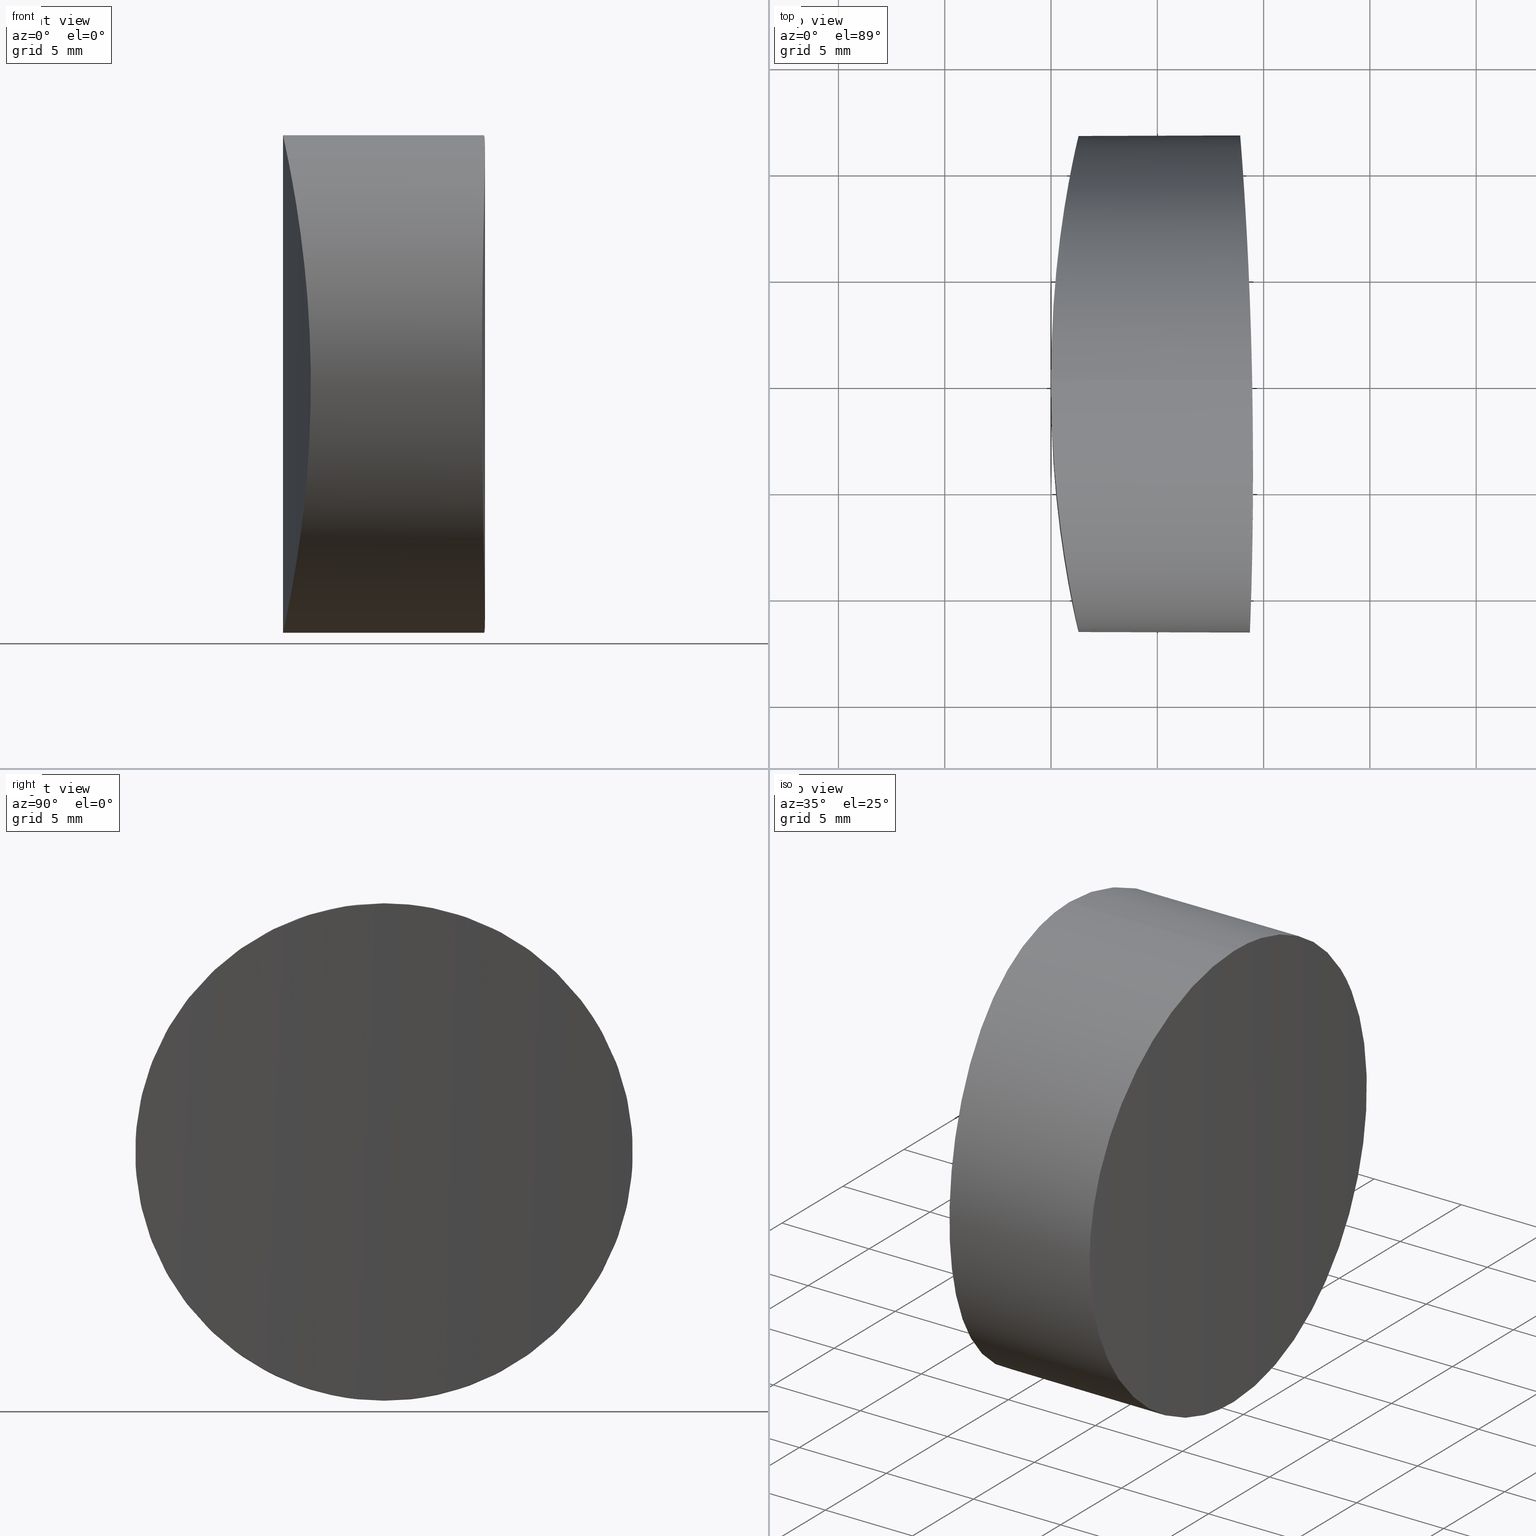
[diagram: canonical four-view strip — front | top / right | iso, engineering-drawing reading convention]
A machine part, canonical four-view strip (front | top / right | iso — engineering-drawing reading convention). The complete STEP part file that produces these views, byte-faithful:
ISO-10303-21;
HEADER;
FILE_DESCRIPTION (( 'STEP AP203' ),
    '1' );
FILE_NAME ('159006.STEP',
    '2024-12-10T01:46:24',
    ( '' ),
    ( '' ),
    'SwSTEP 2.0',
    'SolidWorks 2020',
    '' );
FILE_SCHEMA (( 'CONFIG_CONTROL_DESIGN' ));
ENDSEC;

DATA;
#1 = DIRECTION ( 'NONE',  ( -1.000000000000000000, 0.000000000000000000, 0.000000000000000000 ) ) ;
#2 = APPROVAL_STATUS ( 'not_yet_approved' ) ;
#3 = CARTESIAN_POINT ( 'NONE',  ( 1.171801403307262790, 11.08381199494490055, 7.933441659138786406 ) ) ;
#4 = CC_DESIGN_PERSON_AND_ORGANIZATION_ASSIGNMENT ( #151, #62, ( #60 ) ) ;
#5 = EDGE_LOOP ( 'NONE', ( #7, #319 ) ) ;
#6 = DIRECTION ( 'NONE',  ( -1.000000000000000000, 0.000000000000000000, 0.000000000000000000 ) ) ;
#7 = ORIENTED_EDGE ( 'NONE', *, *, #199, .T. ) ;
#8 = CARTESIAN_POINT ( 'NONE',  ( 0.2537053042193414543, 5.190651702965548786, 1.207484286297047626 ) ) ;
#9 = CARTESIAN_POINT ( 'NONE',  ( 9.352213423524844416, -11.69999440974148186, 10.92734647882122268 ) ) ;
#10 = CARTESIAN_POINT ( 'NONE',  ( 0.3215832185379938757, -5.864597404010304160, 1.547203390245412979 ) ) ;
#11 = CARTESIAN_POINT ( 'NONE',  ( 9.392154734949768269, 2.670537553536366016, 23.09766195198681515 ) ) ;
#12 = CARTESIAN_POINT ( 'NONE',  ( 0.9797753914413596110, -10.15294469353523610, 17.56433159691572854 ) ) ;
#13 = CARTESIAN_POINT ( 'NONE',  ( 0.1327722309560153691, -3.767249703045921105, 0.6164223081135538074 ) ) ;
#14 = CARTESIAN_POINT ( 'NONE',  ( 8.918193938291963718, 11.40133598560049677, 14.35419805594666620 ) ) ;
#15 = CARTESIAN_POINT ( 'NONE',  ( 0.08547653528528931233, -3.031360884360567720, 0.3929793506003035342 ) ) ;
#16 = LINE ( 'NONE', #24, #59 ) ;
#17 = CARTESIAN_POINT ( 'NONE',  ( 9.355148244070237595, -11.62423217486401228, 13.23657847158223078 ) ) ;
#18 = CARTESIAN_POINT ( 'NONE',  ( 1.239686549793442616, 11.39631414950679300, 14.37635405121000254 ) ) ;
#19 = CARTESIAN_POINT ( 'NONE',  ( 0.1340338147175385852, -3.784771414356614017, 22.77756085057004753 ) ) ;
#20 = CARTESIAN_POINT ( 'NONE',  ( 0.2502933009550450394, 5.193524176527833269, 22.21209903295020283 ) ) ;
#21 = EDGE_CURVE ( 'NONE', #98, #37, #339, .T. ) ;
#22 = CARTESIAN_POINT ( 'NONE',  ( 9.442265395321154386, -8.802903793530077792, 3.983300117867083490 ) ) ;
#23 = CARTESIAN_POINT ( 'NONE',  ( -6.938893903907228378E-15, 0.000000000000000000, 23.39999999999999858 ) ) ;
#24 = CARTESIAN_POINT ( 'NONE',  ( 23.39999999999999858, -3.326163276453373939E-14, 0.000000000000000000 ) ) ;
#25 = CARTESIAN_POINT ( 'NONE',  ( 9.496569581447252162, -5.183283534740761311, 1.203807225596684516 ) ) ;
#26 = CARTESIAN_POINT ( 'NONE',  ( -7.854126258487518142E-15, 0.000000000000000000, 23.39999999999999858 ) ) ;
#27 = ORGANIZATION ( 'δָ��', 'δָ��', '' ) ;
#28 = PRODUCT_DEFINITION_SHAPE ( 'NONE', 'NONE',  #85 ) ;
#29 = CARTESIAN_POINT ( 'NONE',  ( 0.9771337502401901132, 10.13188928990938997, 17.56349024061697151 ) ) ;
#30 = DIRECTION ( 'NONE',  ( -0.000000000000000000, -0.000000000000000000, -1.000000000000000000 ) ) ;
#31 = CARTESIAN_POINT ( 'NONE',  ( -9.756549002948658456E-15, 0.7751027751086064788, 2.273436430430525544E-15 ) ) ;
#32 = PERSON_AND_ORGANIZATION ( #362, #27 ) ;
#33 = CARTESIAN_POINT ( 'NONE',  ( 9.295268989169297669, 5.185668292870811769, 1.184007973038867068 ) ) ;
#34 = PERSON_AND_ORGANIZATION ( #362, #27 ) ;
#35 = EDGE_LOOP ( 'NONE', ( #64, #292, #324, #210 ) ) ;
#36 = CARTESIAN_POINT ( 'NONE',  ( 0.1340468535546597839, 3.784955127126551577, 0.6225012693388759510 ) ) ;
#37 = VERTEX_POINT ( 'NONE', #26 ) ;
#38 = CYLINDRICAL_SURFACE ( 'NONE', #142, 11.69999999999999929 ) ;
#39 = EDGE_LOOP ( 'NONE', ( #341, #261, #148, #127 ) ) ;
#40 = CARTESIAN_POINT ( 'NONE',  ( 0.3242718691279639076, 5.863628153122811604, 1.568187921911103233 ) ) ;
#41 = CARTESIAN_POINT ( 'NONE',  ( 9.363401768715135631, -11.40156219331375098, 9.046796371426708561 ) ) ;
#42 = CARTESIAN_POINT ( 'NONE',  ( 9.352967112368959945, 3.777055293856554918, 22.78016942181996640 ) ) ;
#43 = CARTESIAN_POINT ( 'NONE',  ( 9.496161556481062860, -2.652935016496884568, 23.10162480438989263 ) ) ;
#44 = CARTESIAN_POINT ( 'NONE',  ( 0.1601529824100869359, -4.132389128636270392, 0.7473699891895942971 ) ) ;
#45 = CARTESIAN_POINT ( 'NONE',  ( 9.448277886467927544, -8.545706550983396710, 3.699602210008022585 ) ) ;
#46 = LINE ( 'NONE', #23, #255 ) ;
#47 = CARTESIAN_POINT ( 'NONE',  ( 9.475543279229475147, -7.120763534110942317, 20.99157049451359924 ) ) ;
#48 = CARTESIAN_POINT ( 'NONE',  ( 1.220034013377217397, -11.30699716974665847, 14.73144394912754862 ) ) ;
#49 = CARTESIAN_POINT ( 'NONE',  ( 9.430000098640308082, -9.291710725062891640, 4.579418277218661792 ) ) ;
#50 = CC_DESIGN_APPROVAL ( #187, ( #321 ) ) ;
#51 = CARTESIAN_POINT ( 'NONE',  ( 0.01698062352700850305, 1.536714609662817921, 23.32374925252178954 ) ) ;
#52 = CARTESIAN_POINT ( 'NONE',  ( 9.500200592845535752, -4.494045089645494429, 0.8774376388609148592 ) ) ;
#53 = CARTESIAN_POINT ( 'NONE',  ( 1.048669280018979855, 10.49252256831193542, 16.89063276857995533 ) ) ;
#54 = CARTESIAN_POINT ( 'NONE',  ( 1.307554438517818385, 11.70004580655177406, 10.92564559392250700 ) ) ;
#55 = EDGE_CURVE ( 'NONE', #37, #98, #46, .T. ) ;
#56 = CARTESIAN_POINT ( 'NONE',  ( 9.476503133716015270, -0.7724283637494163690, -2.676624113323560968E-16 ) ) ;
#57 = CARTESIAN_POINT ( 'NONE',  ( 8.895296378373446444, 11.69999350650823544, 10.92694340388969820 ) ) ;
#58 = DATE_AND_TIME ( #264, #175 ) ;
#59 = VECTOR ( 'NONE', #328, 1000.000000000000000 ) ;
#60 = PRODUCT ( '159006', '159006', '', ( #274 ) ) ;
#61 = CARTESIAN_POINT ( 'NONE',  ( 0.7352260372479595407, 8.800819907462264169, 3.981010801180516090 ) ) ;
#62 = PERSON_AND_ORGANIZATION_ROLE ( 'design_owner' ) ;
#63 = DESIGN_CONTEXT ( 'detailed design', #113, 'design' ) ;
#64 = ORIENTED_EDGE ( 'NONE', *, *, #178, .F. ) ;
#65 = EDGE_CURVE ( 'NONE', #37, #98, #282, .T. ) ;
#66 = CARTESIAN_POINT ( 'NONE',  ( 8.942356095350177725, 11.07975187717111254, 7.921712726152200013 ) ) ;
#67 = COORDINATED_UNIVERSAL_TIME_OFFSET ( 8, 0, .AHEAD. ) ;
#68 = CARTESIAN_POINT ( 'NONE',  ( 0.6926057940478030917, 8.544618264834415555, 3.698502141052157022 ) ) ;
#69 = ORIENTED_EDGE ( 'NONE', *, *, #21, .T. ) ;
#70 = CARTESIAN_POINT ( 'NONE',  ( 1.052138292162280830, 10.51235753866063583, 6.507003036298582010 ) ) ;
#71 = CARTESIAN_POINT ( 'NONE',  ( 8.941884033059395165, 11.08610358729603895, 15.45974990673457583 ) ) ;
#72 = CARTESIAN_POINT ( 'NONE',  ( 8.951574255902174926, 10.95544239305414180, 15.82494552099798746 ) ) ;
#73 = CARTESIAN_POINT ( 'NONE',  ( 1.142939644842288827, -10.94840604358787495, 7.556661540344341788 ) ) ;
#74 = CARTESIAN_POINT ( 'NONE',  ( 9.324931314093939605, 4.494403703590644561, 22.52240268245313715 ) ) ;
#75 = CARTESIAN_POINT ( 'NONE',  ( 0.01698234600103291914, -1.536791948663455587, 0.07625841458366722225 ) ) ;
#76 = CARTESIAN_POINT ( 'NONE',  ( 9.363541610728130848, -11.39776444676136080, 14.37009875842853113 ) ) ;
#77 = CC_DESIGN_PERSON_AND_ORGANIZATION_ASSIGNMENT ( #32, #209, ( #121 ) ) ;
#78 = CARTESIAN_POINT ( 'NONE',  ( 0.1327591178576247866, 3.767063936651041445, 22.78364012951723439 ) ) ;
#79 = CARTESIAN_POINT ( 'NONE',  ( 1.170483720502808467, -11.07765129290995887, 7.915495823722440427 ) ) ;
#80 = APPLICATION_PROTOCOL_DEFINITION ( 'international standard', 'config_control_design', 1994, #206 ) ;
#81 = CARTESIAN_POINT ( 'NONE',  ( 9.394171954791183055, -10.51601213995254369, 6.514353711903167365 ) ) ;
#82 = CARTESIAN_POINT ( 'NONE',  ( 0.000000000000000000, 0.000000000000000000, 0.000000000000000000 ) ) ;
#83 = B_SPLINE_CURVE_WITH_KNOTS ( 'NONE', 3,
 ( #186, #163, #165, #43, #272, #247, #130, #245, #134, #352, #47, #193, #299, #301, #102, #355, #219, #326, #105, #329, #275, #76, #17, #99, #9, #295, #41, #278, #171, #226, #81, #221, #310, #49, #22, #45, #258, #196, #108, #197, #25, #52, #360, #86, #136, #170, #56, #307 ),
 .UNSPECIFIED., .F., .F.,
 ( 4, 2, 2, 2, 2, 2, 2, 2, 2, 1, 2, 2, 2, 2, 2, 2, 2, 2, 2, 2, 2, 1, 2, 2, 4 ),
 ( -0.03655633802897177709, -0.03427156690216104362, -0.03312918133875567689, -0.03198679577535031016, -0.02970202464853958363, -0.02855963908513421690, -0.02741725352172884669, -0.02513248239491811670, -0.02399009683151274649, -0.02284771126810737976, -0.02170532570470200956, -0.02056294014129664630, -0.01827816901448590936, -0.01599339788767517243, -0.01485101232426980569, -0.01370862676086443549, -0.01142385563405369509, -0.01028147007064832488, -0.009139084507242958150, -0.006854313380432217745, -0.005711927817026847543, -0.004569542253621480810, -0.003427156690216107138, -0.002284771126810740405, 0.000000000000000000 ),
 .UNSPECIFIED. ) ;
#84 = CARTESIAN_POINT ( 'NONE',  ( 0.06623383273317710873, -2.675778441899378635, 23.09644993657084200 ) ) ;
#85 = PRODUCT_DEFINITION ( 'δ֪', '', #121, #63 ) ;
#86 = CARTESIAN_POINT ( 'NONE',  ( 9.498284809586090560, -3.044805442289601594, 0.3966613089019261351 ) ) ;
#87 = CARTESIAN_POINT ( 'NONE',  ( -7.854126258487518142E-15, 0.000000000000000000, 23.39999999999999858 ) ) ;
#88 = PERSON_AND_ORGANIZATION ( #362, #27 ) ;
#89 = UNCERTAINTY_MEASURE_WITH_UNIT (LENGTH_MEASURE( 1.000000000000000082E-05 ), #331, 'distance_accuracy_value', 'NONE');
#90 = CARTESIAN_POINT ( 'NONE',  ( 9.353671810279758247, 3.758617561783853755, 0.6135184257870789359 ) ) ;
#91 = COORDINATED_UNIVERSAL_TIME_OFFSET ( 8, 0, .AHEAD. ) ;
#92 = AXIS2_PLACEMENT_3D ( 'NONE', #256, #30, #111 ) ;
#93 = CARTESIAN_POINT ( 'NONE',  ( 1.220078164115665720, 11.30719915749325821, 8.669307457497644975 ) ) ;
#94 = DATE_AND_TIME ( #177, #242 ) ;
#95 = ORIENTED_EDGE ( 'NONE', *, *, #55, .T. ) ;
#96 = CARTESIAN_POINT ( 'NONE',  ( 9.392702061187282681, 2.653521556834527395, 0.2985112012331246345 ) ) ;
#97 = CARTESIAN_POINT ( 'NONE',  ( 23.39999999999999858, -3.469446951953614189E-14, 11.69999999999999929 ) ) ;
#98 = VERTEX_POINT ( 'NONE', #239 ) ;
#99 = CARTESIAN_POINT ( 'NONE',  ( 9.352212996658177957, -11.70000558964605375, 12.47248420956220549 ) ) ;
#100 = CARTESIAN_POINT ( 'NONE',  ( 9.197054339683573332, 7.147908762961438178, 20.99453048343922035 ) ) ;
#101 = CARTESIAN_POINT ( 'NONE',  ( 0.4804620058025553253, -7.126560350480390049, 2.412945439528205505 ) ) ;
#102 = CARTESIAN_POINT ( 'NONE',  ( 9.430238992658210861, -9.294186648659838568, 18.84837528921176286 ) ) ;
#103 = CARTESIAN_POINT ( 'NONE',  ( 1.239727250049666996, -11.39649884109566713, 9.024429991333606793 ) ) ;
#104 = CYLINDRICAL_SURFACE ( 'NONE', #237, 11.69999999999999929 ) ;
#105 = CARTESIAN_POINT ( 'NONE',  ( 9.383972031211527565, -10.82253027191511130, 16.19411592266780531 ) ) ;
#106 = CARTESIAN_POINT ( 'NONE',  ( 0.6925517765873338005, -8.544287460014489355, 19.70185015432539188 ) ) ;
#107 = CARTESIAN_POINT ( 'NONE',  ( 0.06547294455947486047, -2.660134906578288216, 0.3000238261956274521 ) ) ;
#108 = CARTESIAN_POINT ( 'NONE',  ( 9.487953116152647581, -6.190248888481524325, 1.764276929338285171 ) ) ;
#109 = CARTESIAN_POINT ( 'NONE',  ( 1.240488670631284096, -11.39994841527490799, 14.36024991735414069 ) ) ;
#110 = CYLINDRICAL_SURFACE ( 'NONE', #92, 53.00000000000000711 ) ;
#111 = DIRECTION ( 'NONE',  ( -1.000000000000000000, 0.000000000000000000, 0.000000000000000000 ) ) ;
#112 = CARTESIAN_POINT ( 'NONE',  ( -7.854126258487518142E-15, 0.000000000000000000, 23.39999999999999858 ) ) ;
#113 = APPLICATION_CONTEXT ( 'configuration controlled 3d designs of mechanical parts and assemblies' ) ;
#114 = CC_DESIGN_DATE_AND_TIME_ASSIGNMENT ( #230, #117, ( #321 ) ) ;
#115 = DIRECTION ( 'NONE',  ( -1.000000000000000000, 0.000000000000000000, 0.000000000000000000 ) ) ;
#116 = PERSON_AND_ORGANIZATION ( #362, #27 ) ;
#117 = DATE_TIME_ROLE ( 'classification_date' ) ;
#118 = CARTESIAN_POINT ( 'NONE',  ( 0.1610648318426978198, 4.143829649213437882, 0.7517781072975173728 ) ) ;
#119 = APPROVAL_STATUS ( 'not_yet_approved' ) ;
#120 = FACE_OUTER_BOUND ( 'NONE', #39, .T. ) ;
#121 = PRODUCT_DEFINITION_FORMATION_WITH_SPECIFIED_SOURCE ( '�κ�', '', #60, .NOT_KNOWN. ) ;
#122 = PERSON_AND_ORGANIZATION_ROLE ( 'creator' ) ;
#123 = SHAPE_DEFINITION_REPRESENTATION ( #28, #133 ) ;
#124 = FACE_OUTER_BOUND ( 'NONE', #5, .T. ) ;
#125 = CARTESIAN_POINT ( 'NONE',  ( 8.925656005192912801, 11.30290556938787816, 8.653578809012540063 ) ) ;
#126 = CARTESIAN_POINT ( 'NONE',  ( 9.263639035377634556, 5.857200893499924454, 1.542898375002979661 ) ) ;
#127 = ORIENTED_EDGE ( 'NONE', *, *, #21, .F. ) ;
#128 = APPROVAL_PERSON_ORGANIZATION ( #260, #286, #337 ) ;
#129 = CARTESIAN_POINT ( 'NONE',  ( 9.098800868109821138, 8.801888861381936380, 19.41784921895905569 ) ) ;
#130 = CARTESIAN_POINT ( 'NONE',  ( 9.500239772291729778, -4.123351876607154409, 22.65604142036439583 ) ) ;
#131 = CARTESIAN_POINT ( 'NONE',  ( 0.5651351972917253441, -7.738275292281461049, 20.50834331003379063 ) ) ;
#132 = ADVANCED_FACE ( 'NONE', ( #120 ), #38, .T. ) ;
#133 = ADVANCED_BREP_SHAPE_REPRESENTATION ( '159006', ( #257, #361 ), #159 ) ;
#134 = CARTESIAN_POINT ( 'NONE',  ( 9.492089505658285020, -5.857326586018293924, 21.85705375023151475 ) ) ;
#135 = CARTESIAN_POINT ( 'NONE',  ( 0.8610071085577148953, -9.516928802657400155, 18.51643117197648891 ) ) ;
#136 = CARTESIAN_POINT ( 'NONE',  ( 9.496278924421423184, -2.670109095540153188, 0.3022368352906527056 ) ) ;
#137 = CARTESIAN_POINT ( 'NONE',  ( 9.461445501207116138, -3.469446951953614189E-14, 23.39999999999999858 ) ) ;
#138 =( NAMED_UNIT ( * ) SI_UNIT ( $, .STERADIAN. ) SOLID_ANGLE_UNIT ( ) );
#139 = EDGE_CURVE ( 'NONE', #345, #37, #184, .T. ) ;
#140 = CYLINDRICAL_SURFACE ( 'NONE', #327, 53.00000000000000711 ) ;
#141 = CARTESIAN_POINT ( 'NONE',  ( 1.082005008377041166, 10.65570756131259067, 16.54672361655963897 ) ) ;
#142 = AXIS2_PLACEMENT_3D ( 'NONE', #97, #1, #185 ) ;
#143 = APPROVAL_ROLE ( '' ) ;
#144 = CC_DESIGN_SECURITY_CLASSIFICATION ( #321, ( #121 ) ) ;
#145 =( NAMED_UNIT ( * ) PLANE_ANGLE_UNIT ( ) SI_UNIT ( $, .RADIAN. ) );
#146 = CARTESIAN_POINT ( 'NONE',  ( 0.5643260757805358407, 7.719444959682630447, 20.50042049762791763 ) ) ;
#147 = DIRECTION ( 'NONE',  ( -0.000000000000000000, -0.000000000000000000, -1.000000000000000000 ) ) ;
#148 = ORIENTED_EDGE ( 'NONE', *, *, #139, .T. ) ;
#149 = B_SPLINE_CURVE_WITH_KNOTS ( 'NONE', 3,
 ( #338, #322, #344, #96, #154, #90, #293, #33, #126, #349, #208, #211, #314, #203, #311, #236, #342, #317, #290, #66, #125, #152, #266, #57, #347, #176, #14, #325, #71, #72, #217, #271, #243, #157, #129, #216, #351, #100, #297, #188, #222, #74, #42, #323, #11, #273, #189, #160 ),
 .UNSPECIFIED., .F., .F.,
 ( 4, 2, 2, 2, 2, 2, 2, 2, 2, 1, 2, 2, 2, 2, 2, 2, 2, 2, 2, 2, 2, 1, 2, 2, 4 ),
 ( 0.000000000000000000, 0.002285877752201777389, 0.003428816628302666300, 0.004571755504403555645, 0.006857633256605335202, 0.008000572132706227149, 0.009143511008807119964, 0.01142938876100890559, 0.01257232763710979841, 0.01371526651321069296, 0.01485820538931158924, 0.01600114426541248205, 0.01828702201761427462, 0.02057289976981606372, 0.02171583864591696000, 0.02285877752201785282, 0.02514465527421962804, 0.02628759415032051391, 0.02743053302642140326, 0.02971641077862319236, 0.03085934965472408170, 0.03200228853082497105, 0.03314522740692586733, 0.03428816628302676361, 0.03657404403522854230 ),
 .UNSPECIFIED. ) ;
#150 = CARTESIAN_POINT ( 'NONE',  ( -9.765032587493219707E-15, 2.076112862454337734E-31, -7.001265857959861659E-17 ) ) ;
#151 = PERSON_AND_ORGANIZATION ( #362, #27 ) ;
#152 = CARTESIAN_POINT ( 'NONE',  ( 8.918492703261481580, 11.39740452900778322, 9.028334524654788140 ) ) ;
#153 = CC_DESIGN_APPROVAL ( #306, ( #121 ) ) ;
#154 = CARTESIAN_POINT ( 'NONE',  ( 9.380280443053862882, 3.024027347924564513, 0.3910416805915773453 ) ) ;
#155 = ADVANCED_FACE ( 'NONE', ( #124 ), #182, .T. ) ;
#156 = CARTESIAN_POINT ( 'NONE',  ( 1.240528653417853233, 11.40012979548049543, 9.040524774124742535 ) ) ;
#157 = CARTESIAN_POINT ( 'NONE',  ( 9.067431687910005422, 9.290571400348499154, 18.82205919307982356 ) ) ;
#158 = CARTESIAN_POINT ( 'NONE',  ( -9.778783617814083839E-15, -0.7751027746439268507, -2.408961701991230164E-15 ) ) ;
#159 =( GEOMETRIC_REPRESENTATION_CONTEXT ( 3 ) GLOBAL_UNCERTAINTY_ASSIGNED_CONTEXT ( ( #89 ) ) GLOBAL_UNIT_ASSIGNED_CONTEXT ( ( #331, #145, #138 ) ) REPRESENTATION_CONTEXT ( 'NONE', 'WORKASPACE' ) );
#160 = CARTESIAN_POINT ( 'NONE',  ( 9.461445501207116138, -3.469446951953614189E-14, 23.39999999999999858 ) ) ;
#161 = CLOSED_SHELL ( 'NONE', ( #363, #368, #263, #155, #132 ) ) ;
#162 = CARTESIAN_POINT ( 'NONE',  ( 0.9771945648685066432, -10.13220136009002026, 5.837047885766070365 ) ) ;
#163 = CARTESIAN_POINT ( 'NONE',  ( 9.476503133916363453, -0.7724283740268901299, 23.39999999999999858 ) ) ;
#164 = CARTESIAN_POINT ( 'NONE',  ( 1.307540284935838404, -11.69998327378136160, 12.47534063427469064 ) ) ;
#165 = CARTESIAN_POINT ( 'NONE',  ( 9.486901981996984645, -1.532021908152006784, 23.32425732682644792 ) ) ;
#166 = CARTESIAN_POINT ( 'NONE',  ( 1.218797039320273834, 11.30133354464667228, 14.75232255152263505 ) ) ;
#167 = CARTESIAN_POINT ( 'NONE',  ( 0.1601373355377620766, 4.132187816717918238, 22.65270531467229276 ) ) ;
#168 = LOCAL_TIME ( 9, 46, 24.00000000000000000, #67 ) ;
#169 = CARTESIAN_POINT ( 'NONE',  ( 1.171749971878573104, -11.08357169846447299, 15.46726370438259401 ) ) ;
#170 = CARTESIAN_POINT ( 'NONE',  ( 9.486986653198979269, -1.536489192072198140, 0.07575155434938872501 ) ) ;
#171 = CARTESIAN_POINT ( 'NONE',  ( 9.374736640926602860, -11.08656858724191885, 7.941636389215420699 ) ) ;
#172 = AXIS2_PLACEMENT_3D ( 'NONE', #241, #147, #6 ) ;
#173 = PERSON_AND_ORGANIZATION ( #362, #27 ) ;
#174 = DIRECTION ( 'NONE',  ( -0.000000000000000000, -0.000000000000000000, -1.000000000000000000 ) ) ;
#175 = LOCAL_TIME ( 9, 46, 24.00000000000000000, #288 ) ;
#176 = CARTESIAN_POINT ( 'NONE',  ( 8.901203159217178751, 11.62416777667415069, 13.23285413744829420 ) ) ;
#177 = CALENDAR_DATE ( 2024, 10, 12 ) ;
#178 = EDGE_CURVE ( 'NONE', #270, #345, #149, .T. ) ;
#179 = CARTESIAN_POINT ( 'NONE',  ( 0.5651823975674182821, 7.738595649994739922, 2.891934691441043093 ) ) ;
#180 = APPLICATION_PROTOCOL_DEFINITION ( 'international standard', 'config_control_design', 1994, #113 ) ;
#181 = APPROVAL_STATUS ( 'not_yet_approved' ) ;
#182 = CYLINDRICAL_SURFACE ( 'NONE', #172, 202.9699999999999989 ) ;
#183 = ORIENTED_EDGE ( 'NONE', *, *, #65, .T. ) ;
#184 = LINE ( 'NONE', #287, #309 ) ;
#185 = DIRECTION ( 'NONE',  ( 0.000000000000000000, 0.000000000000000000, 1.000000000000000000 ) ) ;
#186 = CARTESIAN_POINT ( 'NONE',  ( 9.461445501207116138, -3.469446951953614189E-14, 23.39999999999999858 ) ) ;
#187 = APPROVAL ( #181, 'δָ��' ) ;
#188 = CARTESIAN_POINT ( 'NONE',  ( 9.262886073678787469, 5.857935242610294857, 21.83513383267411712 ) ) ;
#189 = CARTESIAN_POINT ( 'NONE',  ( 9.446380575356565501, 0.7728024985250819823, 23.39999999999999147 ) ) ;
#190 = CARTESIAN_POINT ( 'NONE',  ( 1.290089299203422968, 11.62364976877623768, 13.24147814111602983 ) ) ;
#191 = CARTESIAN_POINT ( 'NONE',  ( 0.4391966096174253487, 6.816466411269717973, 21.21690420188815906 ) ) ;
#192 = CARTESIAN_POINT ( 'NONE',  ( 1.290115340050689063, -11.62376498352063514, 10.15937336341435682 ) ) ;
#193 = CARTESIAN_POINT ( 'NONE',  ( 9.465372125274431170, -7.716839495437632479, 20.50278045647474201 ) ) ;
#194 = CARTESIAN_POINT ( 'NONE',  ( 0.2536814845868684554, -5.190408766158909337, 22.19263515830489197 ) ) ;
#195 = CARTESIAN_POINT ( 'NONE',  ( 1.307547855282089166, -11.70001672077195565, 10.92516424993572954 ) ) ;
#196 = CARTESIAN_POINT ( 'NONE',  ( 9.475895442758000442, -7.148508789280991316, 2.405920215401872841 ) ) ;
#197 = CARTESIAN_POINT ( 'NONE',  ( 9.491366177961909401, -5.858190257629586561, 1.565006272110234686 ) ) ;
#198 = CARTESIAN_POINT ( 'NONE',  ( 23.39999999999999858, -3.469446951953614189E-14, 11.69999999999999929 ) ) ;
#199 = EDGE_CURVE ( 'NONE', #345, #270, #83, .T. ) ;
#200 = CARTESIAN_POINT ( 'NONE',  ( 1.307533693674562736, 11.69995415254341964, 12.47573800345438322 ) ) ;
#201 = CARTESIAN_POINT ( 'NONE',  ( 53.00000000000000000, 0.000000000000000000, 23.39999999999999858 ) ) ;
#202 = APPROVAL_DATE_TIME ( #234, #187 ) ;
#203 = CARTESIAN_POINT ( 'NONE',  ( 9.098936468602575545, 8.808831172654816299, 3.962042506503093531 ) ) ;
#204 = CALENDAR_DATE ( 2024, 10, 12 ) ;
#205 = CARTESIAN_POINT ( 'NONE',  ( 0.8610671356810484234, 9.517257528766410957, 4.884026813170719628 ) ) ;
#206 = APPLICATION_CONTEXT ( 'configuration controlled 3d designs of mechanical parts and assemblies' ) ;
#207 = APPROVAL_DATE_TIME ( #94, #306 ) ;
#208 = CARTESIAN_POINT ( 'NONE',  ( 9.197787539348512453, 7.120080832303409935, 2.407910966712322853 ) ) ;
#209 = PERSON_AND_ORGANIZATION_ROLE ( 'design_supplier' ) ;
#210 = ORIENTED_EDGE ( 'NONE', *, *, #139, .F. ) ;
#211 = CARTESIAN_POINT ( 'NONE',  ( 9.164339636956855273, 7.716024861467568385, 2.896510351099747638 ) ) ;
#212 = CARTESIAN_POINT ( 'NONE',  ( 0.6068410626405982278, 8.001935334067065142, 20.24420768682008998 ) ) ;
#213 = CARTESIAN_POINT ( 'NONE',  ( 1.290136296337491384, 11.62382593961583943, 10.16385487374989971 ) ) ;
#214 = LOCAL_TIME ( 9, 46, 24.00000000000000000, #316 ) ;
#215 = CARTESIAN_POINT ( 'NONE',  ( 0.7342557743034158202, 8.808420439445445282, 19.43818749491037678 ) ) ;
#216 = CARTESIAN_POINT ( 'NONE',  ( 9.114863036744297986, 8.544760043192104249, 19.70140212654662193 ) ) ;
#217 = CARTESIAN_POINT ( 'NONE',  ( 8.983678510706736731, 10.51527342856403102, 16.88715712480880171 ) ) ;
#218 = CARTESIAN_POINT ( 'NONE',  ( 0.9388078466891109919, -9.933760670759934186, 5.506615040261237937 ) ) ;
#219 = CARTESIAN_POINT ( 'NONE',  ( 9.406000894964723358, -10.13506509217502760, 17.55806246802457338 ) ) ;
#220 = APPROVAL_PERSON_ORGANIZATION ( #238, #306, #340 ) ;
#221 = CARTESIAN_POINT ( 'NONE',  ( 9.405693662071819006, -10.15703450239299954, 5.842652920750353474 ) ) ;
#222 = CARTESIAN_POINT ( 'NONE',  ( 9.294415770968104340, 5.183366164302326773, 22.19614492657170146 ) ) ;
#223 = CARTESIAN_POINT ( 'NONE',  ( 0.3242419592492534197, -5.863358672426279838, 21.83196727213421440 ) ) ;
#224 = CARTESIAN_POINT ( 'NONE',  ( 1.218841693716179897, -11.30153796584996861, 8.648431610790327184 ) ) ;
#225 = DIRECTION ( 'NONE',  ( -1.000000000000000000, 0.000000000000000000, 0.000000000000000000 ) ) ;
#226 = CARTESIAN_POINT ( 'NONE',  ( 9.379307495604834344, -10.95598597629699356, 7.576502579677715232 ) ) ;
#227 = DIRECTION ( 'NONE',  ( -0.000000000000000000, -0.000000000000000000, -1.000000000000000000 ) ) ;
#228 = CARTESIAN_POINT ( 'NONE',  ( 0.9387463441526568975, 9.933438411426966042, 17.89390041422859312 ) ) ;
#229 = CARTESIAN_POINT ( 'NONE',  ( -7.833548925751605227E-15, -0.7750634300982607305, 23.40000000000000924 ) ) ;
#230 = DATE_AND_TIME ( #367, #168 ) ;
#231 = CARTESIAN_POINT ( 'NONE',  ( 0.4804198135842336348, 7.126249182794765602, 20.98729260900914895 ) ) ;
#232 = CARTESIAN_POINT ( 'NONE',  ( 0.08666969582462048793, 3.051944219305289696, 0.3985620417395794313 ) ) ;
#233 = APPROVAL_DATE_TIME ( #58, #286 ) ;
#234 = DATE_AND_TIME ( #265, #214 ) ;
#235 = LOCAL_TIME ( 9, 46, 24.00000000000000000, #343 ) ;
#236 = CARTESIAN_POINT ( 'NONE',  ( 9.024237170934524599, 9.934748969808273600, 5.508192864038754522 ) ) ;
#237 = AXIS2_PLACEMENT_3D ( 'NONE', #198, #115, #359 ) ;
#238 = PERSON_AND_ORGANIZATION ( #362, #27 ) ;
#239 = CARTESIAN_POINT ( 'NONE',  ( -9.765032587493219707E-15, 2.076112862454337734E-31, -7.001265857959861659E-17 ) ) ;
#240 = DIRECTION ( 'NONE',  ( -1.000000000000000000, 0.000000000000000000, 0.000000000000000000 ) ) ;
#241 = CARTESIAN_POINT ( 'NONE',  ( -193.4699999999999989, -3.955923001097368719, 23.39999999999999858 ) ) ;
#242 = LOCAL_TIME ( 9, 46, 24.00000000000000000, #91 ) ;
#243 = CARTESIAN_POINT ( 'NONE',  ( 9.052263488242486389, 9.519939647540656580, 18.51224809078891198 ) ) ;
#244 = CARTESIAN_POINT ( 'NONE',  ( 0.2503169266463144971, -5.193768061037064676, 1.188018760250070027 ) ) ;
#245 = CARTESIAN_POINT ( 'NONE',  ( 9.497510598548753791, -5.185558730809187722, 22.21605809519747865 ) ) ;
#246 = CARTESIAN_POINT ( 'NONE',  ( 0.5643733289401888786, -7.719766134166830440, 2.899860474288485257 ) ) ;
#247 = CARTESIAN_POINT ( 'NONE',  ( 9.500236136557774103, -3.758191776117446370, 22.78662811579891567 ) ) ;
#248 = CARTESIAN_POINT ( 'NONE',  ( 0.3621788510410408612, -6.193806535695959070, 21.63349912525938734 ) ) ;
#249 = CARTESIAN_POINT ( 'NONE',  ( 0.4392355234242918960, -6.816766973138593144, 2.183310267668204130 ) ) ;
#250 = DIRECTION ( 'NONE',  ( 0.000000000000000000, 0.000000000000000000, 1.000000000000000000 ) ) ;
#251 = FACE_OUTER_BOUND ( 'NONE', #35, .T. ) ;
#252 = CARTESIAN_POINT ( 'NONE',  ( 0.08546804239966726557, 3.031210468010436365, 23.00706028647966406 ) ) ;
#253 = CC_DESIGN_PERSON_AND_ORGANIZATION_ASSIGNMENT ( #34, #318, ( #321 ) ) ;
#254 = CC_DESIGN_APPROVAL ( #286, ( #85 ) ) ;
#255 = VECTOR ( 'NONE', #227, 1000.000000000000000 ) ;
#256 = CARTESIAN_POINT ( 'NONE',  ( 53.00000000000000000, 0.000000000000000000, 23.39999999999999858 ) ) ;
#257 = MANIFOLD_SOLID_BREP ( '�г�-����1', #161 ) ;
#258 = CARTESIAN_POINT ( 'NONE',  ( 9.465496558073546396, -7.736926903051799087, 2.890242732552302574 ) ) ;
#259 = CARTESIAN_POINT ( 'NONE',  ( 0.8195385567522541770, 9.287651586428243178, 4.574219109164749497 ) ) ;
#260 = PERSON_AND_ORGANIZATION ( #362, #27 ) ;
#261 = ORIENTED_EDGE ( 'NONE', *, *, #199, .F. ) ;
#262 = CARTESIAN_POINT ( 'NONE',  ( 0.01699136533968877497, 1.540914217129172092, 0.07627037225617232241 ) ) ;
#263 = ADVANCED_FACE ( 'NONE', ( #281 ), #140, .T. ) ;
#264 = CALENDAR_DATE ( 2024, 10, 12 ) ;
#265 = CALENDAR_DATE ( 2024, 10, 12 ) ;
#266 = CARTESIAN_POINT ( 'NONE',  ( 8.901207782228672372, 11.62413285699383181, 10.16245619153355761 ) ) ;
#267 = EDGE_LOOP ( 'NONE', ( #69, #95 ) ) ;
#268 = CARTESIAN_POINT ( 'NONE',  ( 0.06624047027475399307, 2.675912405233510594, 0.3035808443890000152 ) ) ;
#269 = CARTESIAN_POINT ( 'NONE',  ( 0.9798362063739801675, 10.15325579701388037, 5.836202413951143697 ) ) ;
#270 = VERTEX_POINT ( 'NONE', #283 ) ;
#271 = CARTESIAN_POINT ( 'NONE',  ( 9.009259100643994600, 10.15617337607401893, 17.55884307079667650 ) ) ;
#272 = CARTESIAN_POINT ( 'NONE',  ( 9.498190578917654392, -3.023470274403572855, 23.00910942134249737 ) ) ;
#273 = CARTESIAN_POINT ( 'NONE',  ( 9.427068291003212863, 1.536998960048659102, 23.32417779386025813 ) ) ;
#274 = MECHANICAL_CONTEXT ( 'NONE', #206, 'mechanical' ) ;
#275 = CARTESIAN_POINT ( 'NONE',  ( 9.367001130004286580, -11.30332546573669106, 14.74485669669632593 ) ) ;
#276 = CARTESIAN_POINT ( 'NONE',  ( 0.2208723770266134145, -4.846449283441942590, 22.35583415406195229 ) ) ;
#277 = CARTESIAN_POINT ( 'NONE',  ( 0.7343117612305154474, -8.808752986264138940, 3.962187407336911438 ) ) ;
#278 = CARTESIAN_POINT ( 'NONE',  ( 9.366793819733137738, -11.30904222583078500, 8.676283081228467253 ) ) ;
#279 = CARTESIAN_POINT ( 'NONE',  ( 1.052078711988808868, -10.51206384222219192, 16.89358492180543081 ) ) ;
#280 = CARTESIAN_POINT ( 'NONE',  ( 0.8194790661107261842, -9.287317321552414739, 18.82621536022386621 ) ) ;
#281 = FACE_OUTER_BOUND ( 'NONE', #350, .T. ) ;
#282 = B_SPLINE_CURVE_WITH_KNOTS ( 'NONE', 3,
 ( #112, #333, #51, #308, #252, #78, #167, #20, #354, #191, #231, #146, #212, #215, #291, #228, #29, #53, #141, #366, #334, #166, #18, #190, #200, #54, #213, #156, #93, #3, #369, #70, #269, #205, #259, #61, #68, #179, #320, #284, #40, #8, #289, #118, #36, #232, #268, #262, #31, #150 ),
 .UNSPECIFIED., .F., .F.,
 ( 4, 2, 2, 2, 2, 2, 2, 2, 2, 2, 2, 2, 2, 2, 2, 2, 2, 2, 2, 2, 2, 2, 2, 2, 4 ),
 ( 0.05500285231696897675, 0.05729466624280583203, 0.05844057320572425968, 0.05958648016864268732, 0.06187829409447954260, 0.06302420105739796330, 0.06417010802031639094, 0.06646192194615323234, 0.06760782890907165998, 0.06875373587199007375, 0.06989964283490850139, 0.07104554979782692903, 0.07333736372366378431, 0.07562917764950063959, 0.07677508461241905335, 0.07792099157533749487, 0.08021280550117433628, 0.08135871246409276392, 0.08250461942701119156, 0.08479643335284804684, 0.08594234031576647448, 0.08708824727868491600, 0.08823415424160332976, 0.08938006120452175740, 0.09167187513035861268 ),
 .UNSPECIFIED. ) ;
#283 = CARTESIAN_POINT ( 'NONE',  ( 9.461445501207116138, -3.326163276453373939E-14, 0.000000000000000000 ) ) ;
#284 = CARTESIAN_POINT ( 'NONE',  ( 0.3622121464351448772, 6.194089933029269801, 1.766676902202302335 ) ) ;
#285 = PERSON_AND_ORGANIZATION_ROLE ( 'creator' ) ;
#286 = APPROVAL ( #2, 'δָ��' ) ;
#287 = CARTESIAN_POINT ( 'NONE',  ( 23.39999999999999858, -3.469446951953614189E-14, 23.39999999999999858 ) ) ;
#288 = COORDINATED_UNIVERSAL_TIME_OFFSET ( 8, 0, .AHEAD. ) ;
#289 = CARTESIAN_POINT ( 'NONE',  ( 0.2208932934965474326, 4.846678154153956086, 1.044269258112935139 ) ) ;
#290 = CARTESIAN_POINT ( 'NONE',  ( 8.961476069374265663, 10.82183856811304423, 7.204206343642417743 ) ) ;
#291 = CARTESIAN_POINT ( 'NONE',  ( 0.8190544210788904822, 9.291837388699603295, 18.85137483299129002 ) ) ;
#292 = ORIENTED_EDGE ( 'NONE', *, *, #346, .T. ) ;
#293 = CARTESIAN_POINT ( 'NONE',  ( 9.339432953157613682, 4.123701379261986766, 0.7440930122891440401 ) ) ;
#294 = CC_DESIGN_PERSON_AND_ORGANIZATION_ASSIGNMENT ( #116, #122, ( #85 ) ) ;
#295 = CARTESIAN_POINT ( 'NONE',  ( 9.355146843457582406, -11.62421956086795838, 10.16769475252597665 ) ) ;
#296 = CARTESIAN_POINT ( 'NONE',  ( 1.048728294245750980, -10.49281458417401680, 6.509956262481471079 ) ) ;
#297 = CARTESIAN_POINT ( 'NONE',  ( 9.246521127795588768, 6.189777343689413236, 21.63601432081041054 ) ) ;
#298 = CARTESIAN_POINT ( 'NONE',  ( -9.765032587493219707E-15, 2.076112862454337734E-31, -7.001265857959861659E-17 ) ) ;
#299 = CARTESIAN_POINT ( 'NONE',  ( 9.459876852519482071, -8.000523576695425021, 20.24558850962210599 ) ) ;
#300 = PRODUCT_RELATED_PRODUCT_CATEGORY ( 'detail', '', ( #60 ) ) ;
#301 = CARTESIAN_POINT ( 'NONE',  ( 9.442669552900456509, -8.809858280313871859, 19.43681064709245732 ) ) ;
#302 = CARTESIAN_POINT ( 'NONE',  ( 0.1610493055818608410, -4.143630390362557314, 22.64829664212256688 ) ) ;
#303 = CARTESIAN_POINT ( 'NONE',  ( 1.290110482462538899, -11.62371170444175128, 13.23699062679897054 ) ) ;
#304 = CARTESIAN_POINT ( 'NONE',  ( 0.7351699729799257010, -8.800486930276360198, 19.41936773197992849 ) ) ;
#305 = FACE_OUTER_BOUND ( 'NONE', #267, .T. ) ;
#306 = APPROVAL ( #119, 'δָ��' ) ;
#307 = CARTESIAN_POINT ( 'NONE',  ( 9.461445501207116138, -3.326163276453373939E-14, 0.000000000000000000 ) ) ;
#308 = CARTESIAN_POINT ( 'NONE',  ( 0.06546642185171486217, 2.660002513853766626, 23.10000641427689771 ) ) ;
#309 = VECTOR ( 'NONE', #240, 1000.000000000000000 ) ;
#310 = CARTESIAN_POINT ( 'NONE',  ( 9.423805303078266249, -9.520962112923186282, 4.889181648532917812 ) ) ;
#311 = CARTESIAN_POINT ( 'NONE',  ( 9.067572393336789105, 9.293095452425911063, 4.550228834410750878 ) ) ;
#312 = DATE_AND_TIME ( #204, #235 ) ;
#313 = CC_DESIGN_PERSON_AND_ORGANIZATION_ASSIGNMENT ( #88, #285, ( #121 ) ) ;
#314 = CARTESIAN_POINT ( 'NONE',  ( 9.147763827012754589, 7.999648901791646338, 3.153597795098902257 ) ) ;
#315 = SECURITY_CLASSIFICATION_LEVEL ( 'unclassified' ) ;
#316 = COORDINATED_UNIVERSAL_TIME_OFFSET ( 8, 0, .AHEAD. ) ;
#317 = CARTESIAN_POINT ( 'NONE',  ( 8.984968647721272461, 10.49535255962113567, 6.515016420306107392 ) ) ;
#318 = PERSON_AND_ORGANIZATION_ROLE ( 'classification_officer' ) ;
#319 = ORIENTED_EDGE ( 'NONE', *, *, #178, .T. ) ;
#320 = CARTESIAN_POINT ( 'NONE',  ( 0.4807981494365127784, 7.151732506266180067, 2.408425665496726431 ) ) ;
#321 = SECURITY_CLASSIFICATION ( '', '', #315 ) ;
#322 = CARTESIAN_POINT ( 'NONE',  ( 9.446380575557011383, 0.7728024882426376418, 8.385626177817573357E-17 ) ) ;
#323 = CARTESIAN_POINT ( 'NONE',  ( 9.379544642979164237, 3.045304013600121262, 23.00320417288101993 ) ) ;
#324 = ORIENTED_EDGE ( 'NONE', *, *, #65, .F. ) ;
#325 = CARTESIAN_POINT ( 'NONE',  ( 8.925215578524898774, 11.30874445748329471, 14.72484890610910746 ) ) ;
#326 = CARTESIAN_POINT ( 'NONE',  ( 9.394679901094775687, -10.49619705818456872, 16.88326997344924862 ) ) ;
#327 = AXIS2_PLACEMENT_3D ( 'NONE', #201, #174, #225 ) ;
#328 = DIRECTION ( 'NONE',  ( -1.000000000000000000, 0.000000000000000000, 0.000000000000000000 ) ) ;
#329 = CARTESIAN_POINT ( 'NONE',  ( 9.374956890775521856, -11.08030468445560857, 15.47666082504362883 ) ) ;
#330 = CARTESIAN_POINT ( 'NONE',  ( 0.6068906836669444305, -8.002260319940322830, 3.156095857574405805 ) ) ;
#331 =( LENGTH_UNIT ( ) NAMED_UNIT ( * ) SI_UNIT ( .MILLI., .METRE. ) );
#332 = CARTESIAN_POINT ( 'NONE',  ( 1.143832226935844298, -10.95264200930137832, 15.83235231518651709 ) ) ;
#333 = CARTESIAN_POINT ( 'NONE',  ( -7.857712893441330670E-15, 0.7750634305629141574, 23.39999999999999858 ) ) ;
#334 = CARTESIAN_POINT ( 'NONE',  ( 1.170432635055300485, 11.07741245531293828, 15.48520093796450858 ) ) ;
#335 = CC_DESIGN_DATE_AND_TIME_ASSIGNMENT ( #312, #370, ( #85 ) ) ;
#336 = CARTESIAN_POINT ( 'NONE',  ( 0.08666109090798822245, -3.051793055554226086, 23.00147814239729982 ) ) ;
#337 = APPROVAL_ROLE ( '' ) ;
#338 = CARTESIAN_POINT ( 'NONE',  ( 9.461445501207116138, -3.326163276453373939E-14, 0.000000000000000000 ) ) ;
#339 = B_SPLINE_CURVE_WITH_KNOTS ( 'NONE', 3,
 ( #298, #158, #75, #107, #15, #13, #44, #244, #10, #249, #101, #246, #330, #277, #356, #218, #162, #296, #358, #73, #79, #224, #103, #192, #195, #164, #303, #109, #48, #169, #332, #279, #12, #135, #280, #304, #106, #131, #353, #248, #223, #194, #276, #302, #19, #336, #84, #365, #229, #87 ),
 .UNSPECIFIED., .F., .F.,
 ( 4, 2, 2, 2, 2, 2, 2, 2, 2, 2, 2, 2, 2, 2, 2, 2, 2, 2, 2, 2, 2, 2, 2, 2, 4 ),
 ( 0.01833382952556263101, 0.02062564345002551938, 0.02177155041225696183, 0.02291745737448840428, 0.02520927129895129265, 0.02635517826118274204, 0.02750108522341418449, 0.02979289914787707633, 0.03093880611010852572, 0.03208471307233996817, 0.03323062003457141755, 0.03437652699680286694, 0.03666834092126576572, 0.03896015484572866450, 0.04010606180796010001, 0.04125196877019154246, 0.04354378269465444123, 0.04468968965688589756, 0.04583559661911734001, 0.04812741054358024573, 0.04927331750581170206, 0.05041922446804315838, 0.05156513143027461471, 0.05271103839250606410, 0.05500285231696897675 ),
 .UNSPECIFIED. ) ;
#340 = APPROVAL_ROLE ( '' ) ;
#341 = ORIENTED_EDGE ( 'NONE', *, *, #346, .F. ) ;
#342 = CARTESIAN_POINT ( 'NONE',  ( 9.010433915708327746, 10.13405843210886026, 5.840192855814746231 ) ) ;
#343 = COORDINATED_UNIVERSAL_TIME_OFFSET ( 8, 0, .AHEAD. ) ;
#344 = CARTESIAN_POINT ( 'NONE',  ( 9.427156831037011742, 1.532576757781603849, 0.07581390352526702625 ) ) ;
#345 = VERTEX_POINT ( 'NONE', #137 ) ;
#346 = EDGE_CURVE ( 'NONE', #270, #98, #16, .T. ) ;
#347 = CARTESIAN_POINT ( 'NONE',  ( 8.895295373703715924, 11.70000649266608050, 12.47286002917488901 ) ) ;
#348 = ORIENTED_EDGE ( 'NONE', *, *, #55, .F. ) ;
#349 = CARTESIAN_POINT ( 'NONE',  ( 9.214504183204118348, 6.810408234894513413, 2.178749104980272300 ) ) ;
#350 = EDGE_LOOP ( 'NONE', ( #348, #183 ) ) ;
#351 = CARTESIAN_POINT ( 'NONE',  ( 9.163677122438222966, 7.736186671685318039, 20.51038344946396563 ) ) ;
#352 = CARTESIAN_POINT ( 'NONE',  ( 9.480168664625052699, -6.810917225985094525, 21.22089336385363012 ) ) ;
#353 = CARTESIAN_POINT ( 'NONE',  ( 0.4807563894973554963, -7.151424293548708455, 20.99180863267619657 ) ) ;
#354 = CARTESIAN_POINT ( 'NONE',  ( 0.3215535514609719203, 5.864328544862257075, 21.85294885308968560 ) ) ;
#355 = CARTESIAN_POINT ( 'NONE',  ( 9.412002923249593422, -9.935854051094954897, 17.89004022274698613 ) ) ;
#356 = CARTESIAN_POINT ( 'NONE',  ( 0.8191136885652348099, -9.292169913680146109, 4.549052399218969533 ) ) ;
#357 = DIRECTION ( 'NONE',  ( 1.000000000000000000, 0.000000000000000000, 0.000000000000000000 ) ) ;
#358 = CARTESIAN_POINT ( 'NONE',  ( 1.082062615822121820, -10.65598805115349990, 6.853891546796850420 ) ) ;
#359 = DIRECTION ( 'NONE',  ( 0.000000000000000000, 0.000000000000000000, 1.000000000000000000 ) ) ;
#360 = CARTESIAN_POINT ( 'NONE',  ( 9.500250551990054859, -3.776578044087888220, 0.6196676934315528129 ) ) ;
#361 = AXIS2_PLACEMENT_3D ( 'NONE', #82, #250, #357 ) ;
#362 = PERSON ( 'δָ��', 'δָ��', 'δָ��', ('δָ��'), ('δָ��'), ('δָ��') ) ;
#363 = ADVANCED_FACE ( 'NONE', ( #251 ), #104, .T. ) ;
#364 = APPROVAL_PERSON_ORGANIZATION ( #173, #187, #143 ) ;
#365 = CARTESIAN_POINT ( 'NONE',  ( 0.01698964118050149547, -1.540836461563728665, 23.32373729513498617 ) ) ;
#366 = CARTESIAN_POINT ( 'NONE',  ( 1.142886001977515331, 10.94815214447174867, 15.84400748901709122 ) ) ;
#367 = CALENDAR_DATE ( 2024, 10, 12 ) ;
#368 = ADVANCED_FACE ( 'NONE', ( #305 ), #110, .T. ) ;
#369 = CARTESIAN_POINT ( 'NONE',  ( 1.143886271490393014, 10.95289770951936958, 7.568323417035577094 ) ) ;
#370 = DATE_TIME_ROLE ( 'creation_date' ) ;
ENDSEC;
END-ISO-10303-21;
